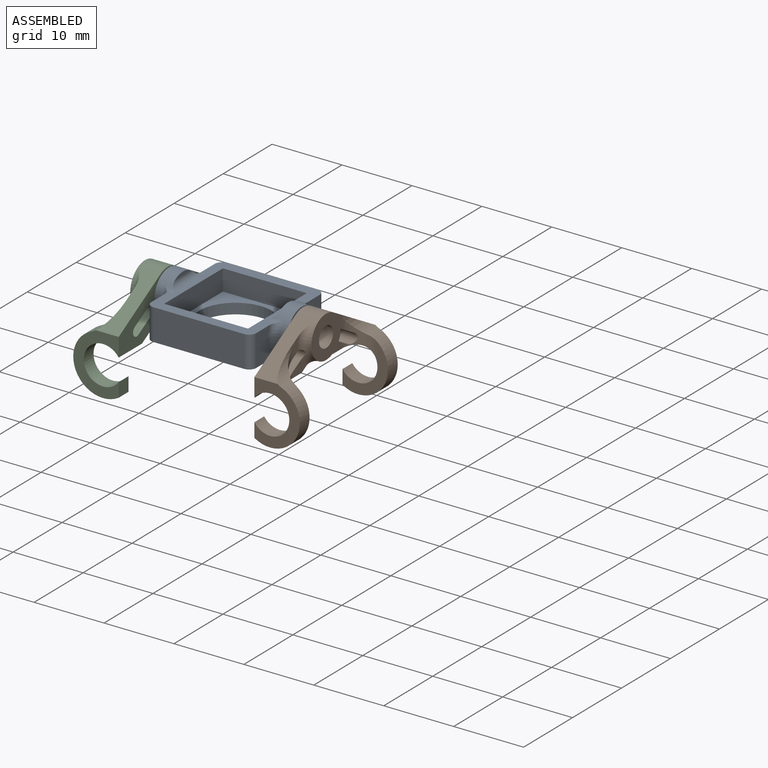
[diagram: assembled view]
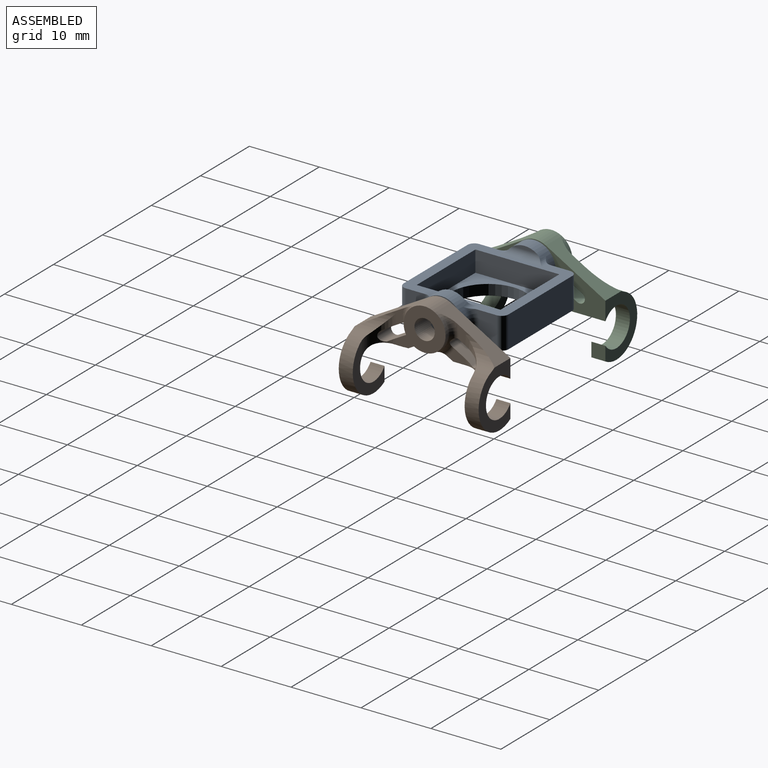
[diagram: assembled view, second angle]
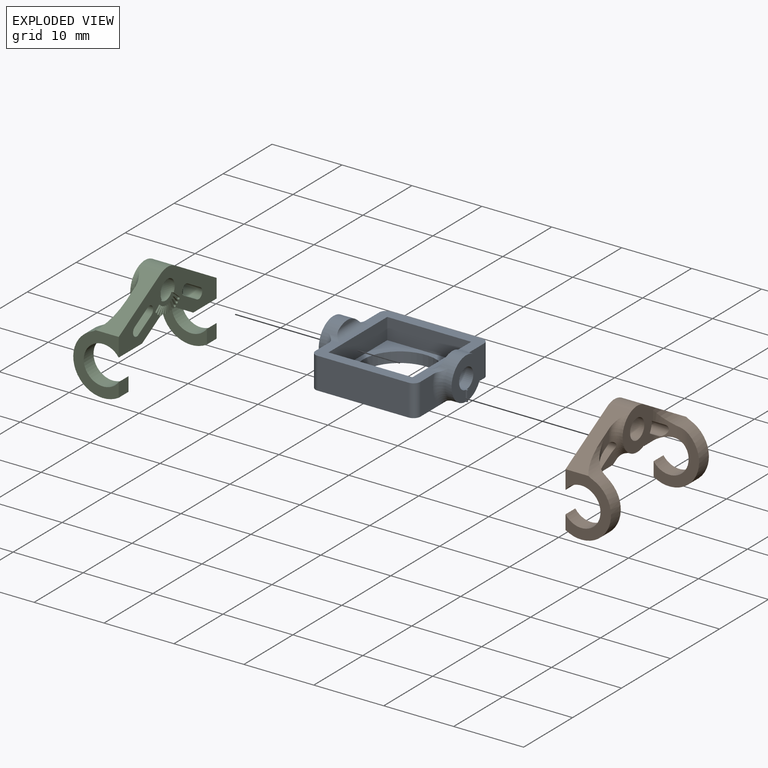
[diagram: exploded view]
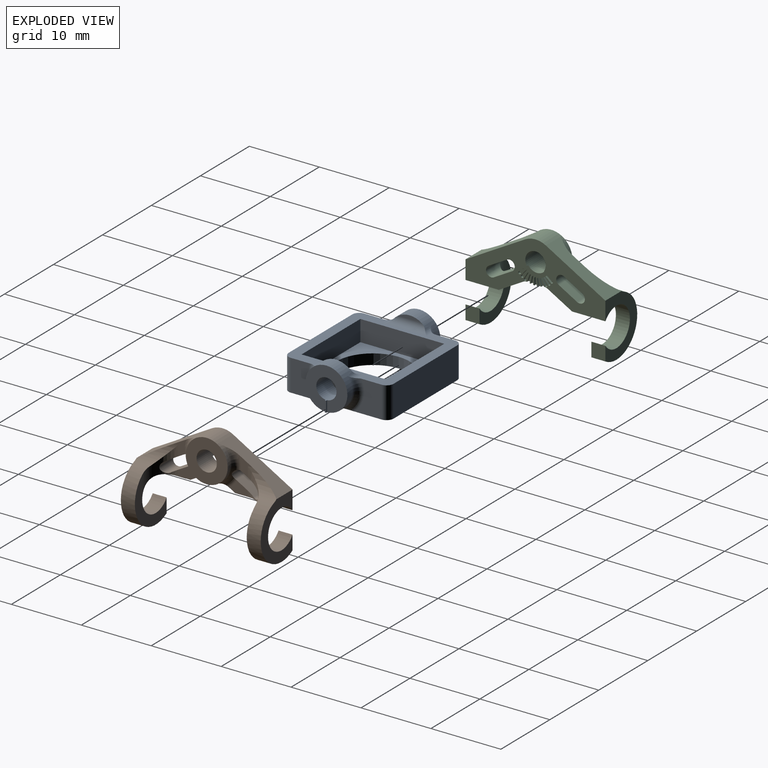
[diagram: exploded view, second angle]
ASSEMBLY  parts=3 mates=2
PART A: 48 faces, bbox 20x15.6x7.6 mm
  f0: plane 6x6mm, normal (1,0,0), area 21.4mm2, adj f19,f20,f45,f46
  f1: plane 6x6mm, normal (-1,0,0), area 21.4mm2, adj f17,f18,f42,f43
  f2: plane 4.5x3.85mm, normal (1,0,0), area 12.6mm2, adj f12,f13,f23,f41
  f3: plane 4.5x3.85mm, normal (-1,0,0), area 12.6mm2, adj f12,f13,f27,f39
  f4: plane 4.5x3.85mm, normal (1,0,0), area 12.6mm2, adj f12,f13,f24,f38
  f5: plane 13x4.5mm, normal (0,1,0), area 58.5mm2, adj f12,f13,f38,f39
  f6: plane 4.5x3.85mm, normal (-1,0,0), area 12.6mm2, adj f12,f13,f28,f40
  f7: plane 12x3mm, normal (0,-1,0), area 36mm2, adj f8,f10,f12,f15
  f8: plane 12x3mm, normal (-1,0,0), area 36mm2, adj f7,f9,f12,f15
  f9: plane 12x3mm, normal (0,1,0), area 36mm2, adj f8,f10,f12,f15
  f10: plane 12x3mm, normal (1,0,0), area 36mm2, adj f7,f9,f12,f15
  f11: plane 13x4.5mm, normal (0,-1,0), area 58.5mm2, adj f12,f13,f40,f41
  f12: plane 15.32x15.01mm, normal (0,0,1), area 67.8mm2, adj f2,f3,f4,f5,f6,f7,f8,f9
  f13: plane 15.56x15.56mm, normal (0,0,-1), area 137.6mm2, adj f2,f3,f4,f5,f6,f11,f14,f22
  f14: cylinder r=5.25mm len=10.5mm, axis (0,0,-1), area 49.5mm2, adj f13,f15
  f15: plane 12x12mm, normal (0,0,1), area 57.4mm2, adj f7,f8,f9,f10,f14
  f16: plane 3.32x0.5mm, normal (1,0,0), area 1.1mm2, adj f17,f31
  f17: cylinder r=3mm len=6mm, axis (1,0,0), area 26.1mm2, adj f1,f16,f26,f27,f28,f29,f30,f31
  f18: cylinder r=1.45mm len=3.2mm, axis (1,0,0), area 27.4mm2, adj f1,f37,f42,f43,f44
  f19: cylinder r=3mm len=6mm, axis (-1,0,0), area 26.1mm2, adj f0,f21,f22,f23,f24,f25,f33,f34
  f20: cylinder r=1.45mm len=3.2mm, axis (-1,0,0), area 27.4mm2, adj f0,f36,f45,f46,f47
  f21: plane 3.32x0.5mm, normal (-1,0,0), area 1.1mm2, adj f19,f34
  f22: bspline ~2.76x1.07mm, area 1.1mm2, adj f13,f19,f23
  f23: torus R=4mm, axis (-1,0,0), area 7.1mm2, adj f2,f12,f19,f22,f35
  f24: torus R=4mm, axis (-1,0,0), area 7.1mm2, adj f4,f12,f19,f25,f33
  f25: bspline ~2.76x1.07mm, area 1.1mm2, adj f13,f19,f24
  f26: bspline ~2.76x1.07mm, area 1.1mm2, adj f13,f17,f27
  f27: torus R=4mm, axis (-1,0,0), area 7.1mm2, adj f3,f12,f17,f26,f32
  f28: torus R=4mm, axis (-1,0,0), area 7.1mm2, adj f6,f12,f17,f29,f30
  f29: bspline ~2.76x1.07mm, area 1.1mm2, adj f13,f17,f28
  f30: cylinder r=1mm len=2mm, axis (1,0,0), area 1.1mm2, adj f12,f17,f28,f31
  f31: cylinder r=1mm len=6.25mm, axis (0,1,0), area 7.6mm2, adj f12,f16,f17,f30,f32
  f32: cylinder r=1mm len=2mm, axis (1,0,0), area 1.1mm2, adj f12,f17,f27,f31
  f33: cylinder r=1mm len=2mm, axis (-1,0,0), area 1.1mm2, adj f12,f19,f24,f34
  f34: cylinder r=1mm len=6.25mm, axis (0,1,0), area 7.6mm2, adj f12,f19,f21,f33,f35
  f35: cylinder r=1mm len=2mm, axis (-1,0,0), area 1.1mm2, adj f12,f19,f23,f34
  f36: plane 2.9x2.9mm, normal (1,0,0), area 6.6mm2, adj f20
  f37: plane 2.9x2.9mm, normal (-1,0,0), area 6.6mm2, adj f18
  f38: cylinder r=1mm len=4.5mm, axis (0,0,-1), area 7.1mm2, adj f4,f5,f12,f13
  f39: cylinder r=1mm len=4.5mm, axis (0,0,1), area 7.1mm2, adj f3,f5,f12,f13
  f40: cylinder r=1mm len=4.5mm, axis (0,0,-1), area 7.1mm2, adj f6,f11,f12,f13
  f41: cylinder r=1mm len=4.5mm, axis (0,0,1), area 7.1mm2, adj f2,f11,f12,f13
  f42: plane 1.55x0.2mm, normal (0,1,0), area 0.3mm2, adj f1,f17,f18,f44
  f43: plane 1.55x0.2mm, normal (0,-1,0), area 0.3mm2, adj f1,f17,f18,f44
  f44: plane 1.55x0.2mm, normal (-1,0,0), area 0.3mm2, adj f17,f18,f42,f43
  f45: plane 1.55x0.2mm, normal (0,-1,0), area 0.3mm2, adj f0,f19,f20,f47
  f46: plane 1.55x0.2mm, normal (0,1,0), area 0.3mm2, adj f0,f19,f20,f47
  f47: plane 1.55x0.2mm, normal (1,0,0), area 0.3mm2, adj f19,f20,f45,f46
PART B: 73 faces, bbox 15.2x20x6.5 mm
  f0: plane 0.98x0.34mm, normal (0,0,1), area 0.1mm2, adj f4,f42,f43
  f1: plane 0.99x0.17mm, normal (0,0,1), area 0.1mm2, adj f4,f44,f45
  f2: plane 0.99x0.17mm, normal (0,0,1), area 0.1mm2, adj f4,f46,f47
  f3: plane 0.98x0.34mm, normal (0,0,1), area 0.1mm2, adj f4,f48,f49
  f4: cylinder r=3mm len=6mm, axis (0,0,-1), area 19.4mm2, adj f0,f1,f2,f3,f5,f6,f8,f13
  f5: cylinder r=1mm len=3mm, axis (0,0,-1), area 2.1mm2, adj f4,f8,f14,f16,f50,f52
  f6: cylinder r=1mm len=3mm, axis (0,0,-1), area 2.1mm2, adj f4,f8,f13,f21,f51,f52
  f7: plane 2.53x1.91mm, normal (0,0,-1), area 2.1mm2, adj f11,f14,f18,f31,f35,f36
  f8: plane 20x7.92mm, normal (0,0,1), area 70.5mm2, adj f4,f5,f6,f16,f17,f18,f19,f20
  f9: plane 2.68x1.7mm, normal (0,0,-1), area 2.9mm2, adj f12,f13,f21,f24,f40
  f10: plane 2.53x1.91mm, normal (0,0,-1), area 2.1mm2, adj f12,f13,f19,f32,f39,f41
  f11: cylinder r=3mm len=6.71mm, axis (1,0,0), area 7.7mm2, adj f7,f15,f27,f28,f29,f31,f34,f35
  f12: cylinder r=3mm len=6.71mm, axis (-1,0,0), area 7.7mm2, adj f9,f10,f23,f24,f25,f32,f38,f39
  f13: torus R=4mm, axis (0,0,1), area 8mm2, adj f4,f6,f9,f10,f19,f21,f40,f41
  f14: torus R=4mm, axis (0,0,1), area 8mm2, adj f4,f5,f7,f15,f16,f18,f36,f37
  f15: plane 2.68x1.7mm, normal (0,0,-1), area 2.9mm2, adj f11,f14,f16,f27,f37
  f16: plane 3.5x2.2mm, normal (0.87,-0.5,0), area 4.9mm2, adj f5,f8,f14,f15,f27
  f17: plane 8.5x6.5mm, normal (0,1,0), area 24.4mm2, adj f8,f18,f27,f28,f30,f31
  f18: plane 8.51x4.86mm, normal (-0.87,0.5,0), area 22.5mm2, adj f4,f7,f8,f14,f17,f31
  f19: plane 8.51x4.86mm, normal (-0.87,-0.5,0), area 22.5mm2, adj f4,f8,f10,f13,f20,f32
  f20: plane 8.5x6.5mm, normal (0,-1,0), area 24.4mm2, adj f8,f19,f23,f24,f26,f32
  f21: plane 3.5x2.2mm, normal (0.87,0.5,0), area 4.9mm2, adj f6,f8,f9,f13,f24
  f22: cylinder r=1.45mm len=3.25mm, axis (0,0,-1), area 28.7mm2, adj f8,f33,f52,f53,f72
  f23: cylinder r=4.25mm len=8.18mm, axis (0,-1,0), area 28.2mm2, adj f12,f20,f25,f26,f32
  f24: cylinder r=2.75mm len=6.8mm, axis (0,-1,0), area 39.5mm2, adj f8,f9,f12,f20,f21,f25,f26
  f25: plane 7.49x6.5mm, normal (0,1,0), area 15.3mm2, adj f12,f23,f24,f26
  f26: plane 2.02x2mm, normal (0,0,1), area 4mm2, adj f20,f23,f24,f25
  f27: cylinder r=2.75mm len=6.8mm, axis (0,-1,0), area 39.5mm2, adj f8,f11,f15,f16,f17,f29,f30
  f28: cylinder r=4.25mm len=8.18mm, axis (0,-1,0), area 28.2mm2, adj f11,f17,f29,f30,f31
  f29: plane 7.49x6.5mm, normal (0,-1,0), area 15.3mm2, adj f11,f27,f28,f30
  f30: plane 2.02x2mm, normal (0,0,1), area 4mm2, adj f17,f27,f28,f29
  f31: cylinder r=3mm len=5mm, axis (0,-1,0), area 6.5mm2, adj f7,f11,f17,f18,f28
  f32: cylinder r=3mm len=5mm, axis (0,-1,0), area 6.5mm2, adj f10,f12,f19,f20,f23
  f33: plane 6x6mm, normal (0,0,-1), area 21.7mm2, adj f4,f22
  f34: cylinder r=0.75mm len=2.83mm, axis (0,0,1), area 6.1mm2, adj f8,f11,f35,f37
  f35: plane 2.65x2.57mm, normal (0.87,-0.5,0), area 6.3mm2, adj f7,f8,f11,f34,f36
  f36: cylinder r=0.75mm len=2.39mm, axis (0,0,1), area 5.1mm2, adj f7,f8,f14,f35,f37
  f37: plane 2.61x2.16mm, normal (-0.87,0.5,0), area 6.1mm2, adj f8,f11,f14,f15,f34,f36
  f38: cylinder r=0.75mm len=2.83mm, axis (0,0,1), area 6.1mm2, adj f8,f12,f39,f40
  f39: plane 2.65x2.57mm, normal (0.87,0.5,0), area 6.3mm2, adj f8,f10,f12,f38,f41
  f40: plane 2.61x2.16mm, normal (-0.87,-0.5,0), area 6.1mm2, adj f8,f9,f12,f13,f38,f41
  f41: cylinder r=0.75mm len=2.39mm, axis (0,0,1), area 5.1mm2, adj f8,f10,f13,f39,f40
  f42: plane 0.93x0.34mm, normal (-0.34,-0.94,0), area 0.3mm2, adj f0,f4,f43,f52
  f43: plane 0.98x0.3mm, normal (0.17,0.98,0), area 0.3mm2, adj f0,f4,f42,f52
  f44: plane 0.98x0.3mm, normal (-0.17,-0.98,0), area 0.3mm2, adj f1,f4,f45,f52
  f45: plane 0.99x0.3mm, normal (0,1,0), area 0.3mm2, adj f1,f4,f44,f52
  f46: plane 0.99x0.3mm, normal (0,-1,0), area 0.3mm2, adj f2,f4,f47,f52
  f47: plane 0.98x0.3mm, normal (-0.17,0.98,0), area 0.3mm2, adj f2,f4,f46,f52
  f48: plane 0.98x0.3mm, normal (0.17,-0.98,0), area 0.3mm2, adj f3,f4,f49,f52
  f49: plane 0.93x0.34mm, normal (-0.34,0.94,0), area 0.3mm2, adj f3,f4,f48,f52
  f50: cylinder r=0.17mm len=0.3mm, axis (0,0,1), area 0mm2, adj f5,f8,f52,f63
  f51: cylinder r=0.17mm len=0.3mm, axis (0,0,1), area 0mm2, adj f6,f8,f52,f62
  f52: plane 4.95x2.21mm, normal (0,0,1), area 6mm2, adj f4,f5,f6,f22,f42,f43,f44,f45
  f53: plane 1.2x1mm, normal (0.77,0.64,0), area 0.5mm2, adj f8,f22,f52,f54
  f54: cylinder r=0.17mm len=0.31mm, axis (0,0,1), area 0.2mm2, adj f8,f52,f53,f55
  f55: plane 0.77x0.64mm, normal (-0.77,-0.64,0), area 0.3mm2, adj f8,f52,f54,f56
  f56: plane 0.77x0.64mm, normal (0.64,0.77,0), area 0.3mm2, adj f8,f52,f55,f57
  f57: cylinder r=0.17mm len=0.31mm, axis (0,0,1), area 0.2mm2, adj f8,f52,f56,f58
  f58: plane 0.77x0.64mm, normal (-0.64,-0.77,0), area 0.3mm2, adj f8,f52,f57,f59
  f59: plane 0.87x0.5mm, normal (0.5,0.87,0), area 0.3mm2, adj f8,f52,f58,f60
  f60: cylinder r=0.17mm len=0.33mm, axis (0,0,1), area 0.2mm2, adj f8,f52,f59,f61
  f61: plane 0.87x0.5mm, normal (-0.5,-0.87,0), area 0.3mm2, adj f8,f52,f60,f62
  f62: plane 0.94x0.34mm, normal (0.34,0.94,0), area 0.3mm2, adj f8,f51,f52,f61
  f63: plane 0.94x0.34mm, normal (0.34,-0.94,0), area 0.3mm2, adj f8,f50,f52,f64
  f64: plane 0.87x0.5mm, normal (-0.5,0.87,0), area 0.3mm2, adj f8,f52,f63,f65
  f65: cylinder r=0.17mm len=0.33mm, axis (0,0,1), area 0.2mm2, adj f8,f52,f64,f66
  f66: plane 0.87x0.5mm, normal (0.5,-0.87,0), area 0.3mm2, adj f8,f52,f65,f67
  f67: plane 0.77x0.64mm, normal (-0.64,0.77,0), area 0.3mm2, adj f8,f52,f66,f68
  f68: cylinder r=0.17mm len=0.31mm, axis (0,0,1), area 0.2mm2, adj f8,f52,f67,f69
  f69: plane 0.77x0.64mm, normal (0.64,-0.77,0), area 0.3mm2, adj f8,f52,f68,f70
  f70: plane 0.77x0.64mm, normal (-0.77,0.64,0), area 0.3mm2, adj f8,f52,f69,f71
  f71: cylinder r=0.17mm len=0.31mm, axis (0,0,1), area 0.2mm2, adj f8,f52,f70,f72
  f72: plane 1.2x1mm, normal (0.77,-0.64,0), area 0.5mm2, adj f8,f22,f52,f71
PART C: same geometry as B
PLACE A t=(-3.16,-0.07,-0.36)mm
PLACE B rot(axis=(-0.71,0,0.71),180deg) t=(8.54,1.65,-53.98)mm
PLACE C rot(axis=(0,1,0),90deg) t=(-14.86,-1.79,-53.98)mm
MATE fastened B.f4 <-> A.f23  axis (-1,0,0) through (6.54,-0.07,2.64)mm
MATE fastened C.f4 <-> A.f27  axis (1,0,0) through (-12.86,-0.07,2.64)mm
